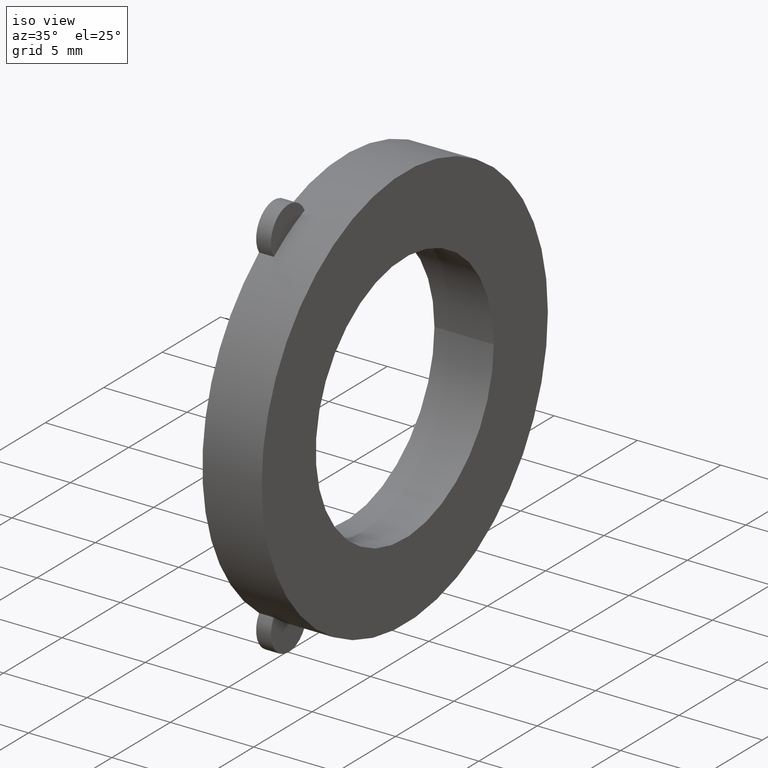
[diagram: clean part render]
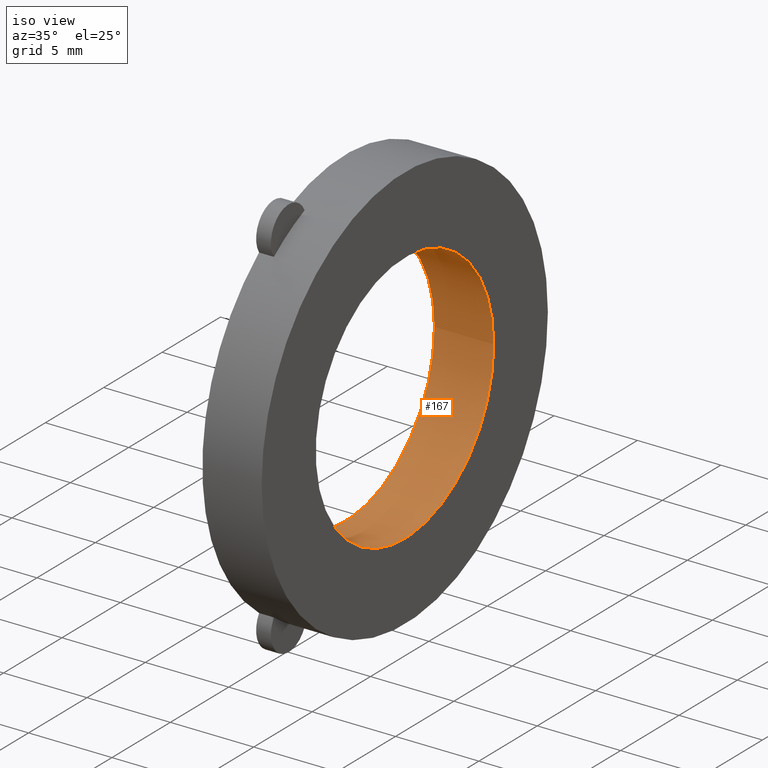
[diagram: same view with one face highlighted and labeled with its STEP entity id]
A machine part, iso view. The second image highlights one B-rep face of the part: STEP entity #167.
In plain terms, the highlighted cylindrical surface (bore or boss wall) has radius 7.62 mm, axis along (1, 0, 0).
Its self-contained STEP definition (entity closure, byte-faithful):
#18=FACE_BOUND('',#59,.T.);
#35=CYLINDRICAL_SURFACE('',#200,0.3);
#45=FACE_OUTER_BOUND('',#58,.T.);
#58=EDGE_LOOP('',(#151));
#59=EDGE_LOOP('',(#152));
#72=CIRCLE('',#195,0.3);
#74=CIRCLE('',#199,0.3);
#87=VERTEX_POINT('',#297);
#89=VERTEX_POINT('',#303);
#108=EDGE_CURVE('',#87,#87,#72,.T.);
#110=EDGE_CURVE('',#89,#89,#74,.T.);
#151=ORIENTED_EDGE('',*,*,#108,.F.);
#152=ORIENTED_EDGE('',*,*,#110,.T.);
#167=ADVANCED_FACE('',(#45,#18),#35,.F.);
#195=AXIS2_PLACEMENT_3D('',#298,#247,#248);
#199=AXIS2_PLACEMENT_3D('',#304,#255,#256);
#200=AXIS2_PLACEMENT_3D('',#305,#257,#258);
#247=DIRECTION('center_axis',(1.,0.,0.));
#248=DIRECTION('ref_axis',(0.,0.,-1.));
#255=DIRECTION('center_axis',(1.,0.,0.));
#256=DIRECTION('ref_axis',(0.,0.,-1.));
#257=DIRECTION('center_axis',(1.,0.,0.));
#258=DIRECTION('ref_axis',(0.,1.,0.));
#297=CARTESIAN_POINT('',(0.,0.3,0.));
#298=CARTESIAN_POINT('Origin',(0.,0.,0.));
#303=CARTESIAN_POINT('',(0.14,0.3,0.));
#304=CARTESIAN_POINT('Origin',(0.14,0.,0.));
#305=CARTESIAN_POINT('Origin',(0.07,0.,0.));